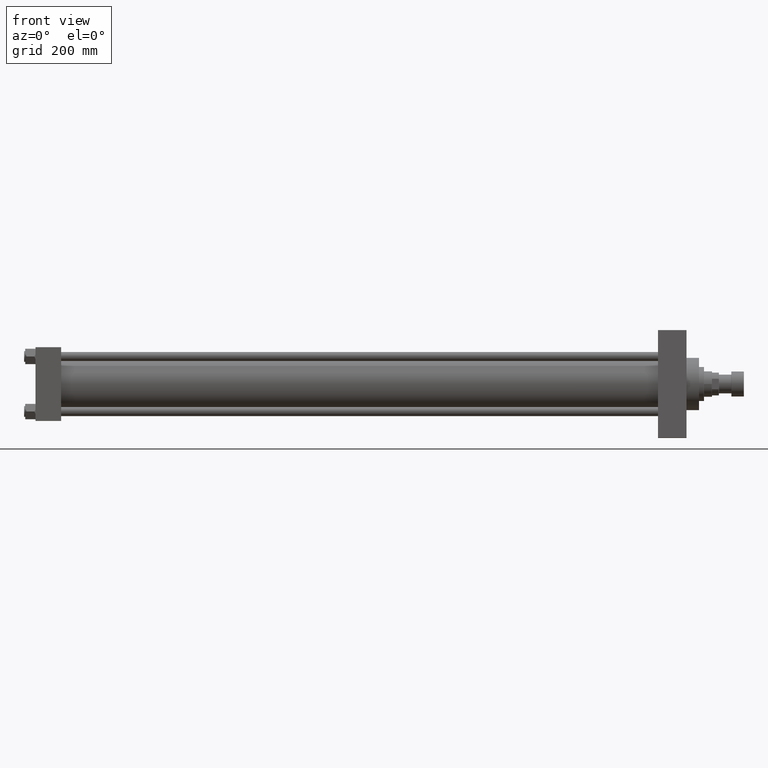
[diagram: clean part render]
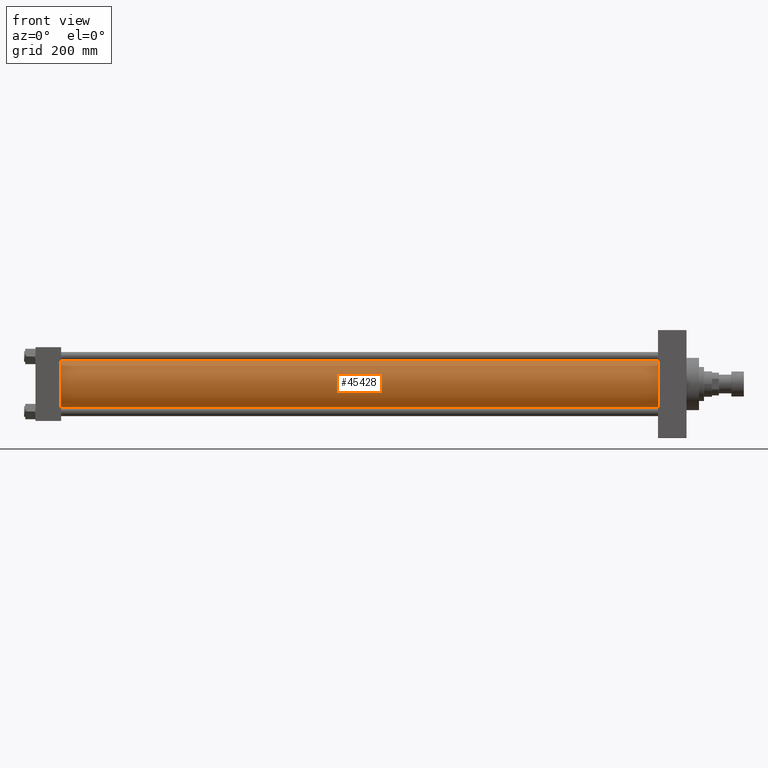
[diagram: same view with one face highlighted and labeled with its STEP entity id]
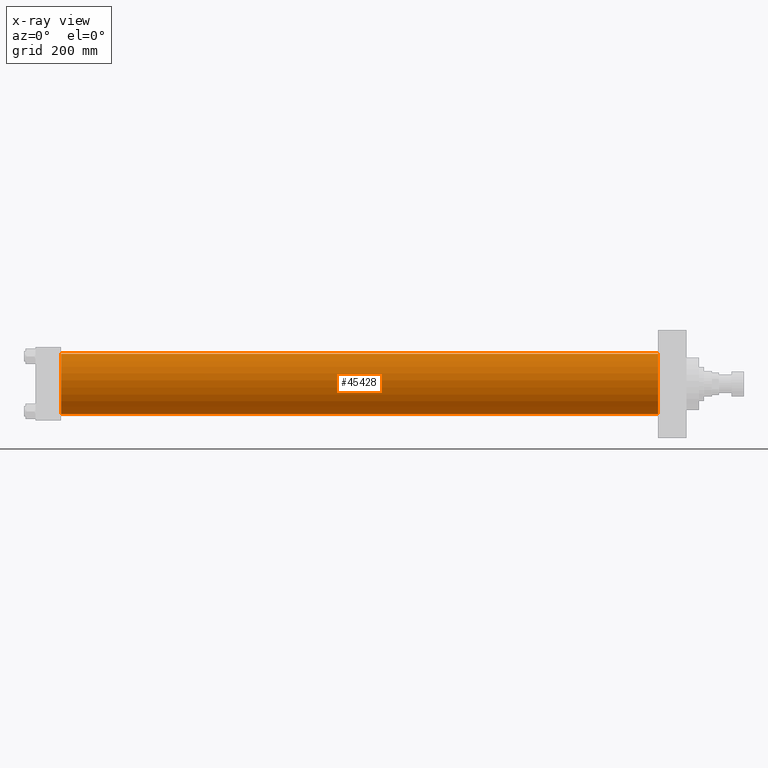
[diagram: x-ray of the same camera — body ghosted, the highlighted face saturated]
A machine part, front view. The second image highlights one B-rep face of the part: STEP entity #45428.
The next image is the same camera in x-ray: the body ghosted, the highlighted face saturated — about 0% of this face is hidden behind the body in this view.
In plain terms, the highlighted cylindrical surface (edge-blend (fillet) strip) has radius 53 mm, axis along (-1, -0, -0).
Its self-contained STEP definition (entity closure, byte-faithful):
#1750 = CARTESIAN_POINT ( 'NONE',  ( 44.99999999999992895, 3.888542821515762466E-15, -53.00000000000000711 ) ) ;
#5467 = DIRECTION ( 'NONE',  ( -1.000000000000000000, -0.000000000000000000, -0.000000000000000000 ) ) ;
#6328 = CARTESIAN_POINT ( 'NONE',  ( 1095.999999999999773, -2.602085213965210642E-15, 53.00000000000000711 ) ) ;
#8126 = DIRECTION ( 'NONE',  ( 1.000000000000000000, -0.000000000000000000, 0.000000000000000000 ) ) ;
#8176 = CARTESIAN_POINT ( 'NONE',  ( 1095.999999999999773, -2.602085213965210642E-15, 53.00000000000000711 ) ) ;
#8243 = DIRECTION ( 'NONE',  ( 0.000000000000000000, 0.000000000000000000, -1.000000000000000000 ) ) ;
#8645 = ORIENTED_EDGE ( 'NONE', *, *, #45870, .T. ) ;
#12081 = VERTEX_POINT ( 'NONE', #37144 ) ;
#12836 = CARTESIAN_POINT ( 'NONE',  ( 1095.999999999999773, -2.602085213965210642E-15, 0.000000000000000000 ) ) ;
#15092 = VERTEX_POINT ( 'NONE', #6328 ) ;
#15959 = CARTESIAN_POINT ( 'NONE',  ( 44.99999999999992895, -2.602085213965210642E-15, 53.00000000000000711 ) ) ;
#17236 = CARTESIAN_POINT ( 'NONE',  ( 1095.999999999999773, -2.602085213965210642E-15, 0.000000000000000000 ) ) ;
#17991 = LINE ( 'NONE', #21399, #47418 ) ;
#19535 = CARTESIAN_POINT ( 'NONE',  ( 44.99999999999992895, -2.602085213965210642E-15, 0.000000000000000000 ) ) ;
#21399 = CARTESIAN_POINT ( 'NONE',  ( 1095.999999999999773, 3.888542821515762466E-15, -53.00000000000000711 ) ) ;
#21647 = DIRECTION ( 'NONE',  ( -1.000000000000000000, -0.000000000000000000, -0.000000000000000000 ) ) ;
#22406 = ORIENTED_EDGE ( 'NONE', *, *, #23923, .F. ) ;
#23923 = EDGE_CURVE ( 'NONE', #15092, #12081, #47266, .T. ) ;
#24300 = AXIS2_PLACEMENT_3D ( 'NONE', #19535, #8126, #34151 ) ;
#26530 = VERTEX_POINT ( 'NONE', #1750 ) ;
#26726 = DIRECTION ( 'NONE',  ( 1.000000000000000000, 0.000000000000000000, 0.000000000000000000 ) ) ;
#28174 = FACE_OUTER_BOUND ( 'NONE', #36009, .T. ) ;
#29159 = DIRECTION ( 'NONE',  ( 0.000000000000000000, 0.000000000000000000, 1.000000000000000000 ) ) ;
#32330 = DIRECTION ( 'NONE',  ( -1.000000000000000000, -0.000000000000000000, -0.000000000000000000 ) ) ;
#34151 = DIRECTION ( 'NONE',  ( 0.000000000000000000, 0.000000000000000000, 1.000000000000000000 ) ) ;
#34202 = LINE ( 'NONE', #8176, #37515 ) ;
#35740 = CYLINDRICAL_SURFACE ( 'NONE', #39057, 53.00000000000000711 ) ;
#36009 = EDGE_LOOP ( 'NONE', ( #44375, #22406, #8645, #36519 ) ) ;
#36404 = EDGE_CURVE ( 'NONE', #12081, #26530, #17991, .T. ) ;
#36519 = ORIENTED_EDGE ( 'NONE', *, *, #47316, .T. ) ;
#37144 = CARTESIAN_POINT ( 'NONE',  ( 1095.999999999999773, 3.888542821515762466E-15, -53.00000000000000711 ) ) ;
#37515 = VECTOR ( 'NONE', #5467, 1000.000000000000000 ) ;
#39057 = AXIS2_PLACEMENT_3D ( 'NONE', #17236, #32330, #29159 ) ;
#42608 = AXIS2_PLACEMENT_3D ( 'NONE', #12836, #26726, #8243 ) ;
#44375 = ORIENTED_EDGE ( 'NONE', *, *, #36404, .F. ) ;
#45310 = CIRCLE ( 'NONE', #24300, 53.00000000000000711 ) ;
#45428 = ADVANCED_FACE ( 'NONE', ( #28174 ), #35740, .T. ) ;
#45844 = VERTEX_POINT ( 'NONE', #15959 ) ;
#45870 = EDGE_CURVE ( 'NONE', #15092, #45844, #34202, .T. ) ;
#47266 = CIRCLE ( 'NONE', #42608, 53.00000000000000711 ) ;
#47316 = EDGE_CURVE ( 'NONE', #45844, #26530, #45310, .T. ) ;
#47418 = VECTOR ( 'NONE', #21647, 1000.000000000000000 ) ;